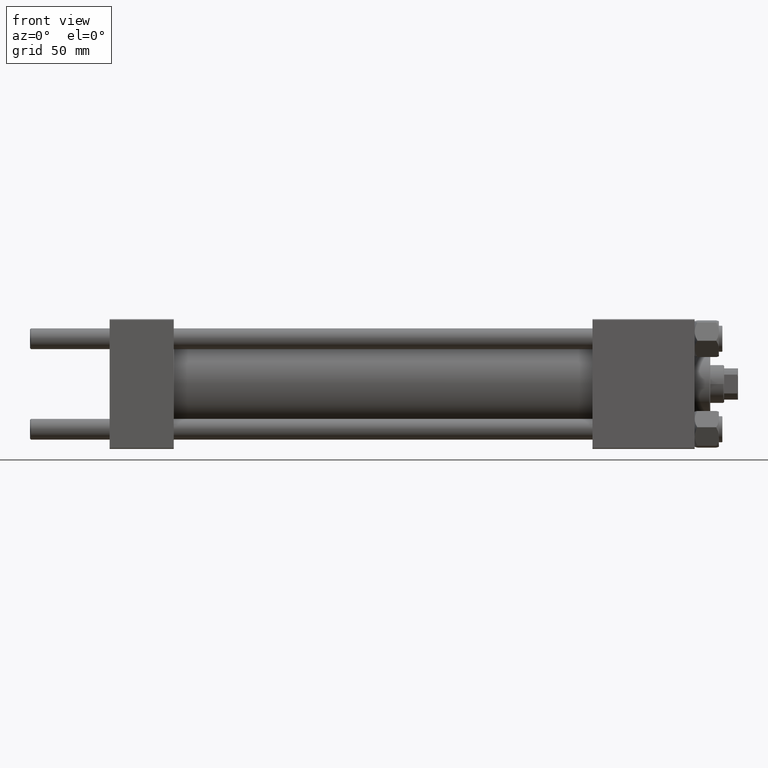
[diagram: clean part render]
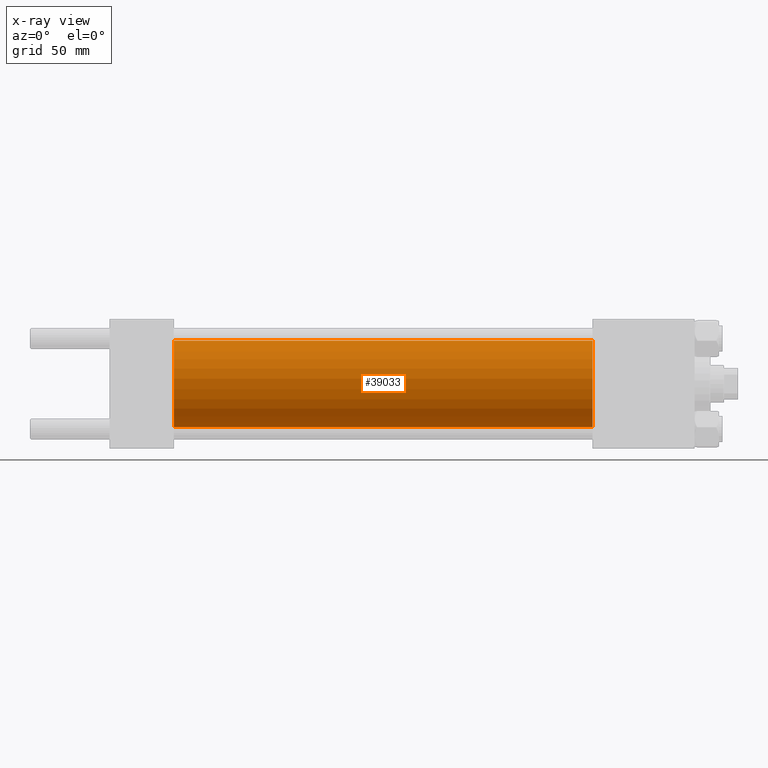
[diagram: x-ray — body ghosted, one internal face saturated and labeled with its STEP entity id]
A machine part, front view, then the same camera in x-ray: the body is ghosted and one INTERNAL B-rep face — a face not visible from any outside direction — is saturated and labeled: STEP entity #39033.
In plain terms, the highlighted cylindrical surface (partial cylindrical patch) has radius 25 mm, axis along (-1, -0, -0).
Its self-contained STEP definition (entity closure, byte-faithful):
#1226 = CARTESIAN_POINT ( 'NONE',  ( 278.9999999999999432, 3.061616997868383043E-15, -25.00000000000000000 ) ) ;
#3067 = LINE ( 'NONE', #44966, #31449 ) ;
#3487 = CYLINDRICAL_SURFACE ( 'NONE', #23042, 25.00000000000000000 ) ;
#3759 = ORIENTED_EDGE ( 'NONE', *, *, #10364, .F. ) ;
#5500 = DIRECTION ( 'NONE',  ( -1.000000000000000000, -0.000000000000000000, -0.000000000000000000 ) ) ;
#6309 = EDGE_CURVE ( 'NONE', #38939, #19765, #28918, .T. ) ;
#7028 = FACE_OUTER_BOUND ( 'NONE', #19169, .T. ) ;
#8751 = EDGE_CURVE ( 'NONE', #19765, #27857, #31800, .T. ) ;
#9567 = DIRECTION ( 'NONE',  ( 1.000000000000000000, 0.000000000000000000, 0.000000000000000000 ) ) ;
#10069 = DIRECTION ( 'NONE',  ( 0.000000000000000000, 0.000000000000000000, -1.000000000000000000 ) ) ;
#10090 = ORIENTED_EDGE ( 'NONE', *, *, #8751, .T. ) ;
#10364 = EDGE_CURVE ( 'NONE', #11885, #27857, #10544, .T. ) ;
#10544 = CIRCLE ( 'NONE', #46784, 25.00000000000000000 ) ;
#11885 = VERTEX_POINT ( 'NONE', #13003 ) ;
#13003 = CARTESIAN_POINT ( 'NONE',  ( 37.00000000000000000, 0.000000000000000000, 25.00000000000000000 ) ) ;
#16254 = ORIENTED_EDGE ( 'NONE', *, *, #6309, .T. ) ;
#19169 = EDGE_LOOP ( 'NONE', ( #16254, #10090, #3759, #20460 ) ) ;
#19765 = VERTEX_POINT ( 'NONE', #29735 ) ;
#20060 = AXIS2_PLACEMENT_3D ( 'NONE', #42746, #38723, #30908 ) ;
#20460 = ORIENTED_EDGE ( 'NONE', *, *, #21586, .F. ) ;
#21586 = EDGE_CURVE ( 'NONE', #38939, #11885, #3067, .T. ) ;
#22677 = CARTESIAN_POINT ( 'NONE',  ( 37.00000000000000000, 3.061616997868383043E-15, -25.00000000000000000 ) ) ;
#23042 = AXIS2_PLACEMENT_3D ( 'NONE', #37822, #46133, #26970 ) ;
#24156 = VECTOR ( 'NONE', #5500, 1000.000000000000000 ) ;
#26970 = DIRECTION ( 'NONE',  ( 0.000000000000000000, 0.000000000000000000, 1.000000000000000000 ) ) ;
#27857 = VERTEX_POINT ( 'NONE', #22677 ) ;
#28918 = CIRCLE ( 'NONE', #20060, 25.00000000000000000 ) ;
#29263 = CARTESIAN_POINT ( 'NONE',  ( 37.00000000000000000, 0.000000000000000000, 0.000000000000000000 ) ) ;
#29735 = CARTESIAN_POINT ( 'NONE',  ( 278.9999999999999432, 3.061616997868383043E-15, -25.00000000000000000 ) ) ;
#30908 = DIRECTION ( 'NONE',  ( 0.000000000000000000, 0.000000000000000000, -1.000000000000000000 ) ) ;
#31449 = VECTOR ( 'NONE', #48755, 1000.000000000000000 ) ;
#31800 = LINE ( 'NONE', #1226, #24156 ) ;
#37822 = CARTESIAN_POINT ( 'NONE',  ( 278.9999999999999432, 0.000000000000000000, 0.000000000000000000 ) ) ;
#38723 = DIRECTION ( 'NONE',  ( 1.000000000000000000, 0.000000000000000000, 0.000000000000000000 ) ) ;
#38939 = VERTEX_POINT ( 'NONE', #40861 ) ;
#39033 = ADVANCED_FACE ( 'NONE', ( #7028 ), #3487, .F. ) ;
#40861 = CARTESIAN_POINT ( 'NONE',  ( 278.9999999999999432, 0.000000000000000000, 25.00000000000000000 ) ) ;
#42746 = CARTESIAN_POINT ( 'NONE',  ( 278.9999999999999432, 0.000000000000000000, 0.000000000000000000 ) ) ;
#44966 = CARTESIAN_POINT ( 'NONE',  ( 278.9999999999999432, 0.000000000000000000, 25.00000000000000000 ) ) ;
#46133 = DIRECTION ( 'NONE',  ( -1.000000000000000000, -0.000000000000000000, -0.000000000000000000 ) ) ;
#46784 = AXIS2_PLACEMENT_3D ( 'NONE', #29263, #9567, #10069 ) ;
#48755 = DIRECTION ( 'NONE',  ( -1.000000000000000000, -0.000000000000000000, -0.000000000000000000 ) ) ;